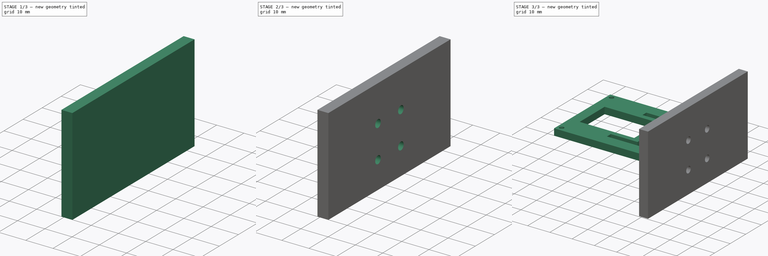
[diagram: build sequence overview — one tinted view per stage of 3, left to right]
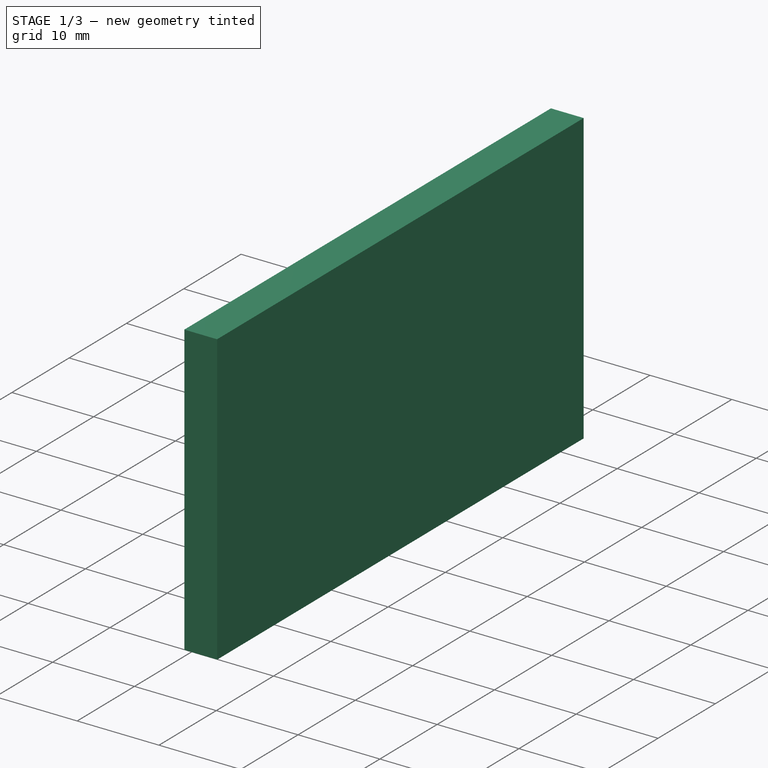
[diagram: stage 1 of 3 — iso view after this stage's code; geometry added in this stage tinted green]
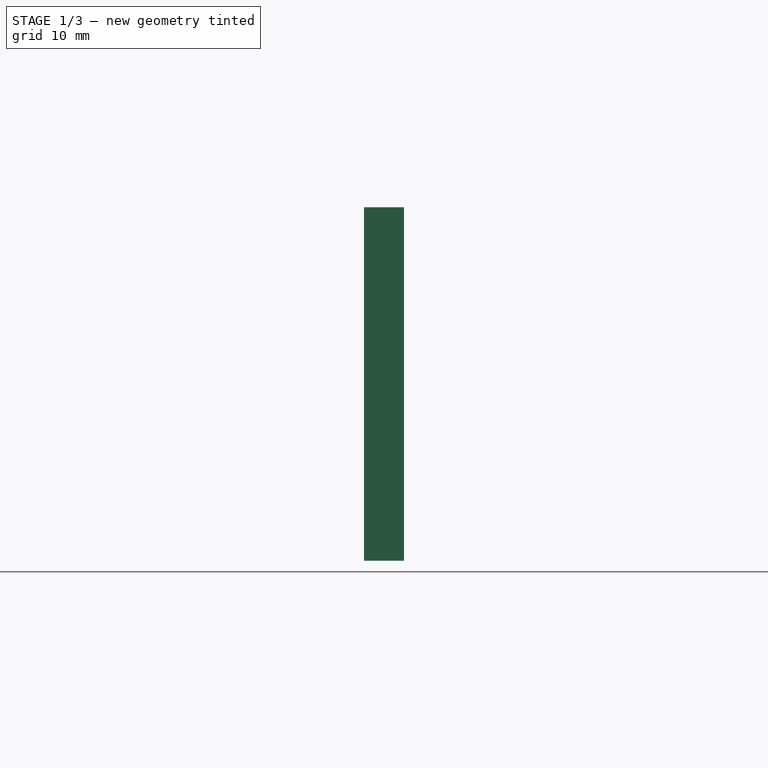
[diagram: stage 1 of 3 — front view after this stage's code; geometry added in this stage tinted green]
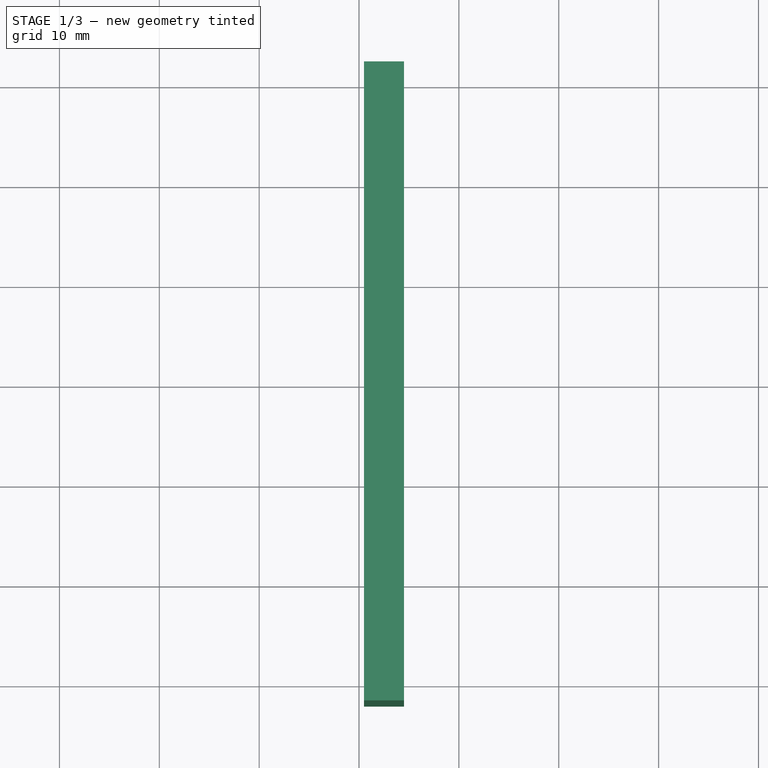
[diagram: stage 1 of 3 — top view after this stage's code; geometry added in this stage tinted green]
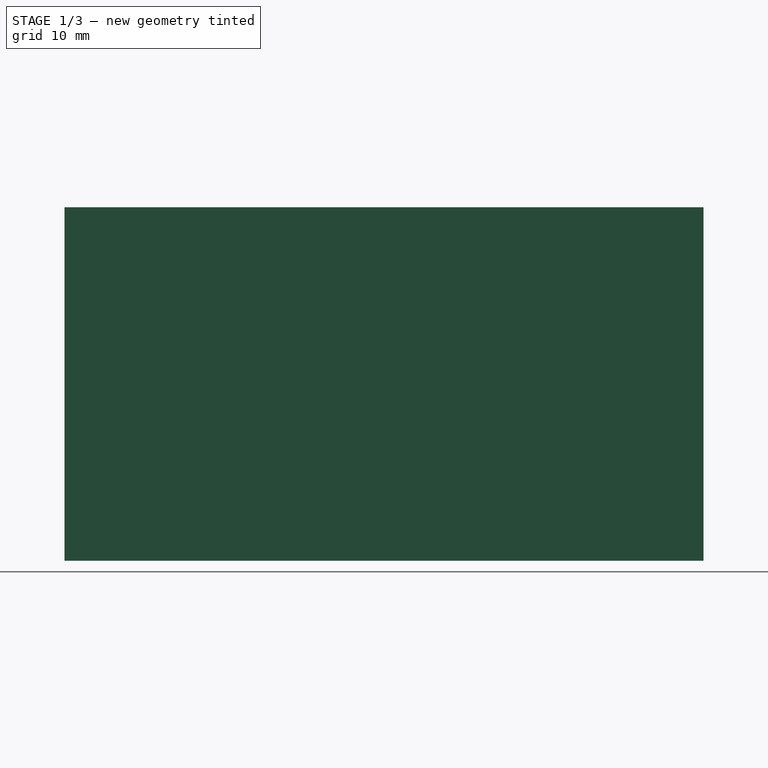
[diagram: stage 1 of 3 — right view after this stage's code; geometry added in this stage tinted green]
FCSTD DOCUMENT  (FreeCAD 0.20R29177 +426 (Git))
Label: camAndDisplayHolder2
License: All rights reserved
LicenseURL: http://en.wikipedia.org/wiki/All_rights_reserved
objects: Sketcher::SketchObject×5, PartDesign::Pocket×3, PartDesign::Pad×2, Spreadsheet::Sheet×1, PartDesign::Body×1
note: 16 computed .brp shape members not serialized (recipe doc carries the construction recipe); baked Part::Feature solids carry a one-line shape summary decoded from their .brp

FEATURE [Spreadsheet::Sheet] Spreadsheet
  cells = A2=holeDiameter; B2(holeDiameter)=1.8; A3=holeDistanceFromRim; B3(holeDistanceFromRim)=2; A4=displayOverheadWidth; B4(displayOverheadWidth)=12; A5=displayWidth; B5(displayWidth)=60; A6=displayHeight; B6(displayHeight)=35; A7=displayStandOff; B7(displayStandOff)=20; C7=from espCarrierBoard; A8=displayStandOffSide; B8(displayStandOffSide)=4; A9=standOffSide; B9(standOffSide)=5; C9=add 2x 1,5mm to screw diameter; A10=espStandoff; B10(espStandoff)=4; A11=espCarrierWidth; B11(espCarrierWidth)=40; A12=espCarrierHeight; B12(espCarrierHeight)=60; A13=faceWidth; B13(faceWidth)==B11 + 2 * B4; C13=c; A14=faceHeight; B14(faceHeight)==B12 - 2 * B3 + B9; C14=c
FEATURE [Sketcher::SketchObject] Sketch005
  FullyConstrained = true
  MapMode = 2
  Placement = pos=(20.5,0,0) rot=(0.57735,0.57735,0.57735;2.0944rad)
  expr: Constraints[7] = Spreadsheet.faceWidth
  sketch-geometry (4):
    g0: LineSegment StartX=-32 StartY=0 StartZ=0 EndX=32 EndY=0 EndZ=0
    g1: LineSegment StartX=32 StartY=0 StartZ=0 EndX=32 EndY=35.4 EndZ=0
    g2: LineSegment StartX=32 StartY=35.4 StartZ=0 EndX=-32 EndY=35.4 EndZ=0
    g3: LineSegment StartX=-32 StartY=35.4 StartZ=0 EndX=-32 EndY=0 EndZ=0
  constraints (11):
    c: Coincident(g0,g1)
    c: Coincident(g1,g2)
    c: Coincident(g2,g3)
    c: Coincident(g3,g0)
    c: Vertical(g1)
    c: Vertical(g3)
    c: DistanceY(g0,g1) = 35.4
    c: DistanceX(g2,g2) = 64
    c: Symmetric(g2,g1,g-2)
    c: Horizontal(g0)
    c: PointOnObject(g0,g-1)
FEATURE [PartDesign::Pad] Pad
  Direction = (1,0,0)
  Length = 4
  Length2 = 10
  Placement = pos=(20.5,0,0) rot=(0.57735,0.57735,0.57735;2.0944rad)
  Profile = -> Sketch005
  ReferenceAxis = -> Sketch005 [N_Axis]
  Type = 0
FEATURE [Sketcher::SketchObject] Sketch  label="screwHeadSketch"
  FullyConstrained = true
  MapMode = 5
  Placement = pos=(20.5,0,0) rot=(0.57735,0.57735,-0.57735;4.18879rad)
  Support = -> [Pad]
  sketch-geometry (4):
    g0: Circle CenterX=6 CenterY=-22 CenterZ=0 NormalX=0 NormalY=0 NormalZ=1 AngleXU=0 Radius=3
    g1: Circle CenterX=-6 CenterY=-22 CenterZ=0 NormalX=0 NormalY=0 NormalZ=1 AngleXU=0 Radius=3
    g2: Circle CenterX=6 CenterY=-10 CenterZ=0 NormalX=0 NormalY=0 NormalZ=1 AngleXU=0 Radius=3
    g3: Circle CenterX=-6 CenterY=-10 CenterZ=0 NormalX=0 NormalY=0 NormalZ=1 AngleXU=0 Radius=3
  constraints (11):
    c: Horizontal(g0,g1)
    c: Vertical(g0,g2)
    c: Vertical(g1,g3)
    c: DistanceY(g0,g2) = 12
    c: DistanceX(g1,g0) = 12
    c: Diameter(g0) = 6
    c: Equal(g1,g0)
    c: Equal(g0,g2)
    c: Equal(g0,g3)
    c: DistanceY(g3,g-1) = 10
    c: Symmetric(g3,g2,g-2)
FEATURE [PartDesign::Pocket] Pocket  label="screwHeadPocket"
  BaseFeature = -> Pad
  Direction = (1,-1e-16,1e-16)
  Length = 2
  Length2 = 5
  Placement = pos=(20.5,0,0) rot=(0.57735,0.57735,0.57735;2.0944rad)
  Profile = -> Sketch
  ReferenceAxis = -> Sketch [N_Axis]
  Type = 0
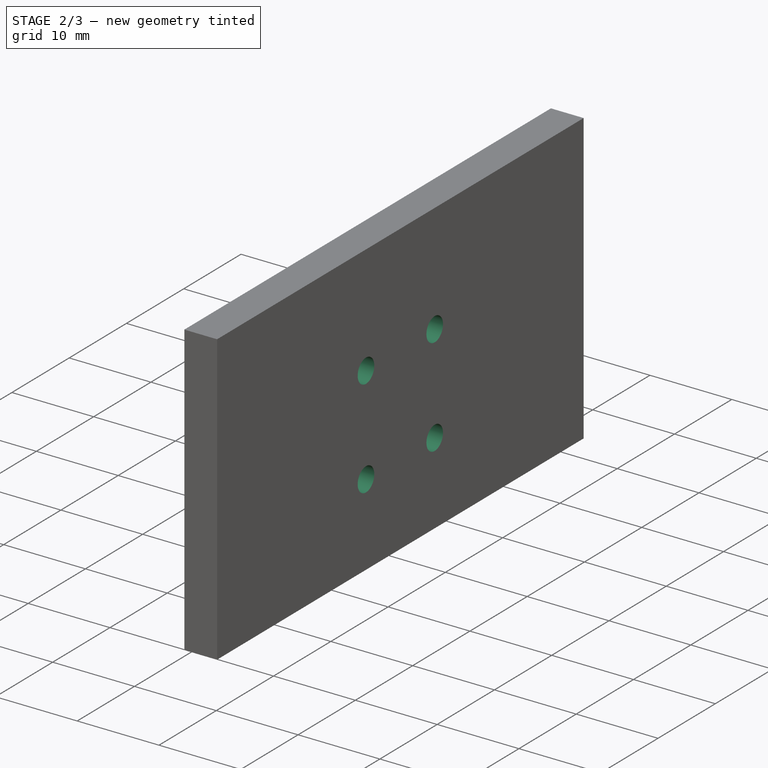
[diagram: stage 2 of 3 — iso view after this stage's code; geometry added in this stage tinted green]
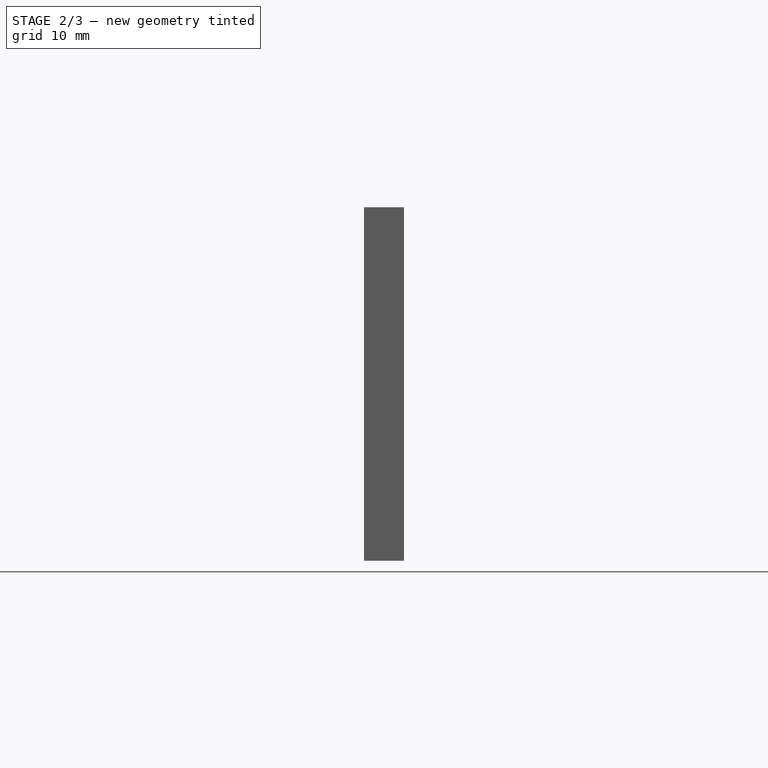
[diagram: stage 2 of 3 — front view after this stage's code; geometry added in this stage tinted green]
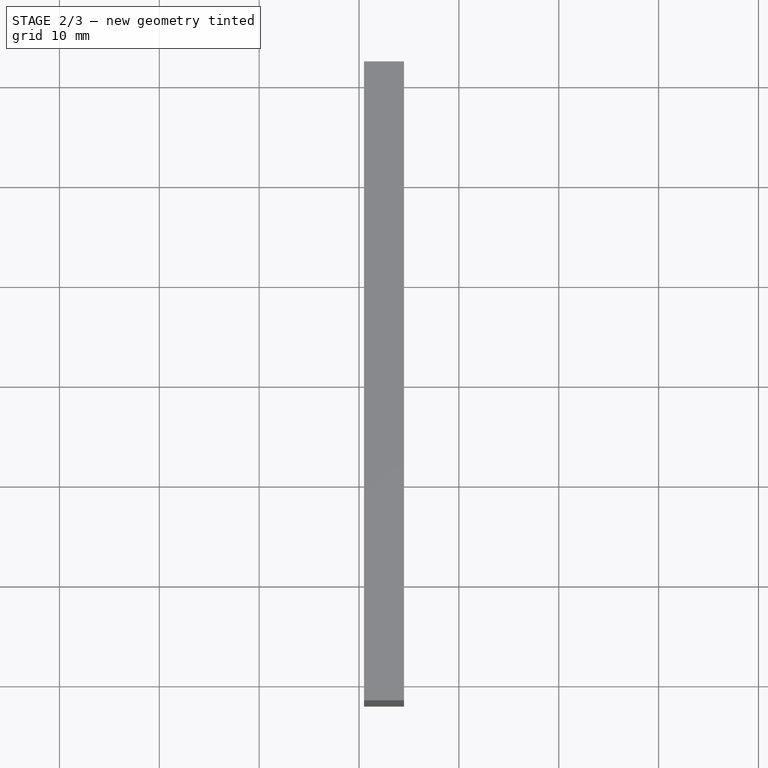
[diagram: stage 2 of 3 — top view after this stage's code; geometry added in this stage tinted green]
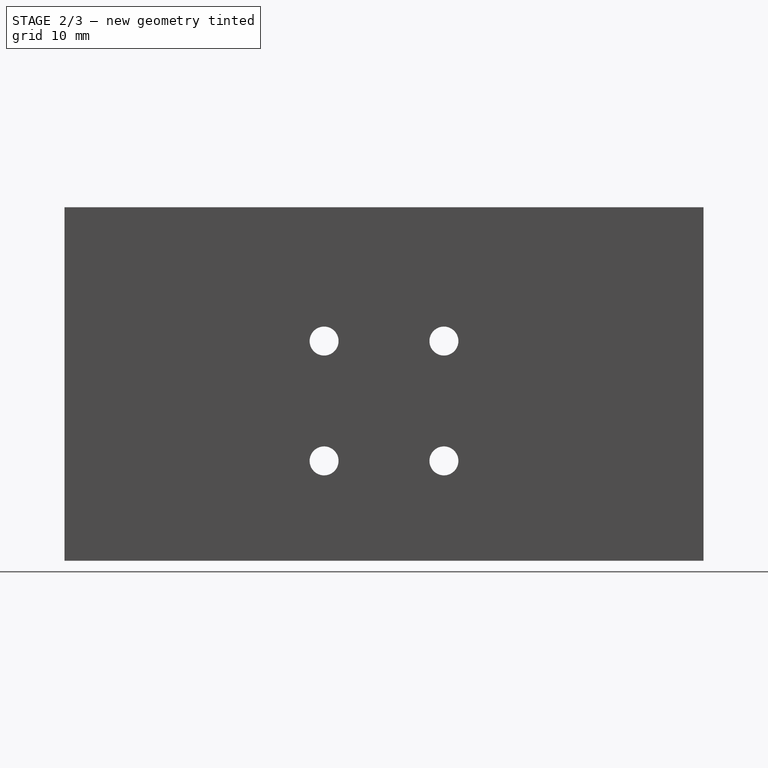
[diagram: stage 2 of 3 — right view after this stage's code; geometry added in this stage tinted green]
FEATURE [Sketcher::SketchObject] Sketch006
  FullyConstrained = true
  MapMode = 5
  Placement = pos=(20.5,0,0) rot=(0.57735,0.57735,-0.57735;4.18879rad)
  Support = -> [Pocket]
  sketch-geometry (4):
    g0: Circle CenterX=6 CenterY=-22 CenterZ=0 NormalX=0 NormalY=0 NormalZ=1 AngleXU=0 Radius=1.45
    g1: Circle CenterX=-6 CenterY=-22 CenterZ=0 NormalX=0 NormalY=0 NormalZ=1 AngleXU=0 Radius=1.45
    g2: Circle CenterX=6 CenterY=-10 CenterZ=0 NormalX=0 NormalY=0 NormalZ=1 AngleXU=0 Radius=1.45
    g3: Circle CenterX=-6 CenterY=-10 CenterZ=0 NormalX=0 NormalY=0 NormalZ=1 AngleXU=0 Radius=1.45
  constraints (11):
    c: Vertical(g0,g2)
    c: Vertical(g1,g3)
    c: Horizontal(g0,g1)
    c: Diameter(g1) = 2.9
    c: Equal(g1,g0)
    c: Equal(g1,g3)
    c: Equal(g1,g2)
    c: DistanceX(g1,g0) = 12
    c: DistanceY(g0,g2) = 12
    c: DistanceY(g2,g-1) = 10
    c: Symmetric(g2,g3,g-2)
FEATURE [PartDesign::Pocket] Pocket001
  BaseFeature = -> Pocket
  Direction = (1,-1e-16,1e-16)
  Length = 5
  Length2 = 5
  Placement = pos=(20.5,0,0) rot=(0.57735,0.57735,0.57735;2.0944rad)
  Profile = -> Sketch006
  ReferenceAxis = -> Sketch006 [N_Axis]
  Type = 0
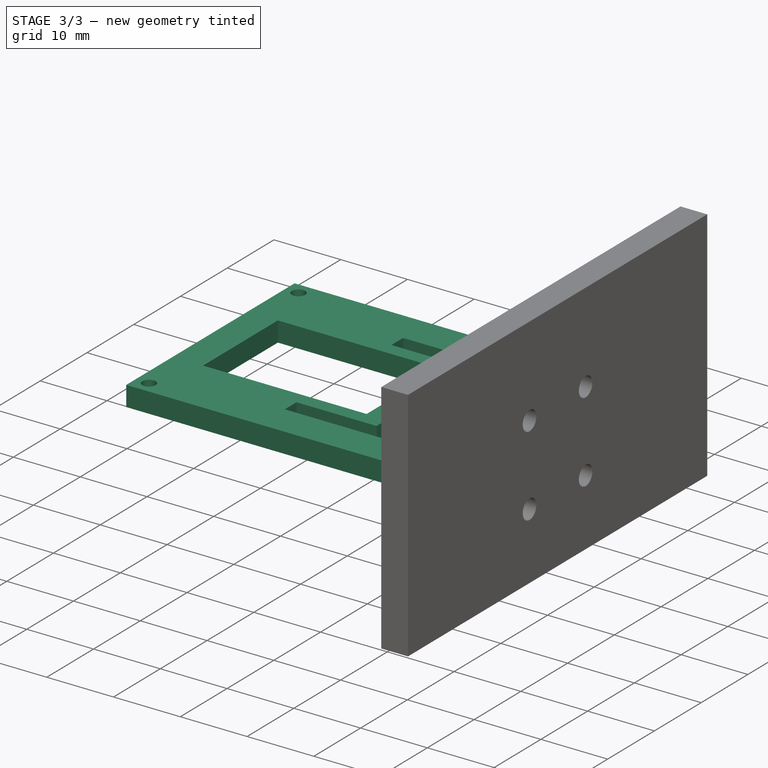
[diagram: stage 3 of 3 — iso view after this stage's code; geometry added in this stage tinted green]
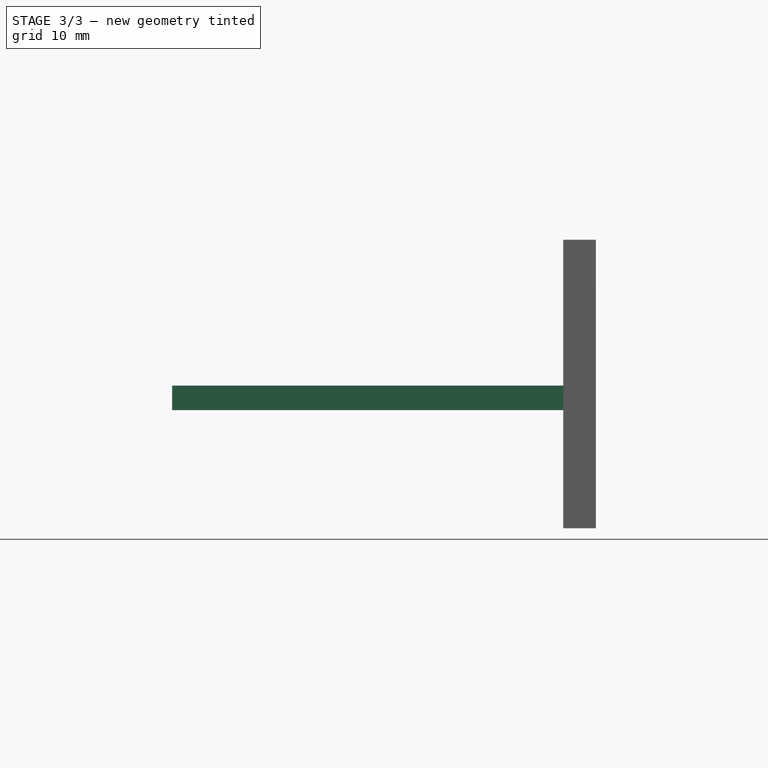
[diagram: stage 3 of 3 — front view after this stage's code; geometry added in this stage tinted green]
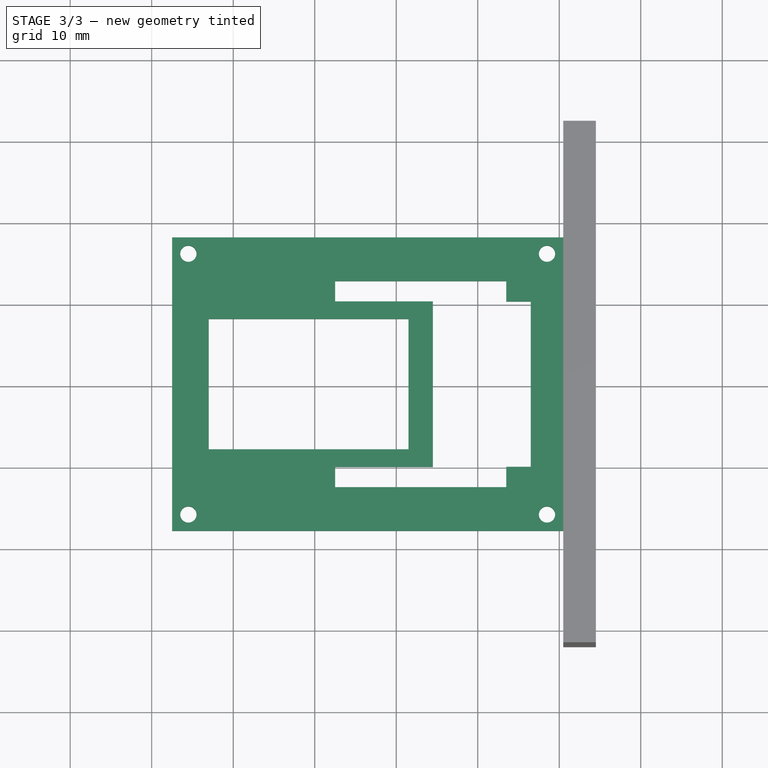
[diagram: stage 3 of 3 — top view after this stage's code; geometry added in this stage tinted green]
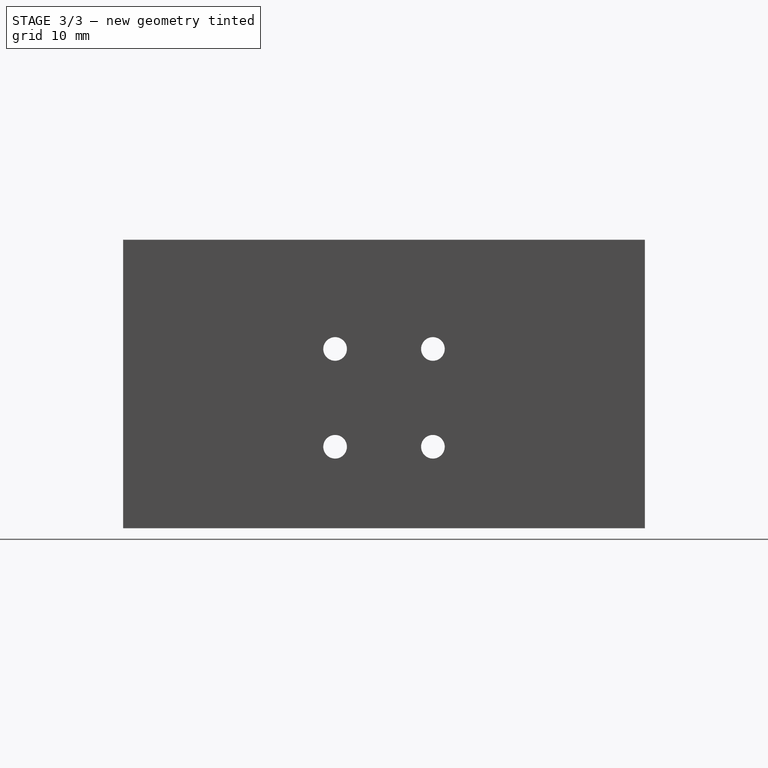
[diagram: stage 3 of 3 — right view after this stage's code; geometry added in this stage tinted green]
FEATURE [Sketcher::SketchObject] Sketch007
  ExternalGeometry = -> [Pocket001]
  FullyConstrained = true
  MapMode = 5
  Placement = pos=(20.5,0,0) rot=(0.57735,0.57735,-0.57735;4.18879rad)
  Support = -> [Pocket001]
  sketch-geometry (5):
    g0: LineSegment StartX=-18 StartY=-14.5 StartZ=0 EndX=18 EndY=-14.5 EndZ=0
    g1: LineSegment StartX=18 StartY=-14.5 StartZ=0 EndX=18 EndY=-17.5 EndZ=0
    g2: LineSegment StartX=18 StartY=-17.5 StartZ=0 EndX=-18 EndY=-17.5 EndZ=0
    g3: LineSegment StartX=-18 StartY=-17.5 StartZ=0 EndX=-18 EndY=-14.5 EndZ=0
    g4: GeomPoint X=5.8e-15 Y=-16 Z=0
  constraints (11):
    c: Coincident(g0,g1)
    c: Coincident(g1,g2)
    c: Coincident(g2,g3)
    c: Coincident(g3,g0)
    c: Horizontal(g2)
    c: Vertical(g1)
    c: DistanceY(g3,g3) = 3
    c: Symmetric(g0,g0,g-2)
    c: DistanceX(g0,g0) = 36
    c: Symmetric(g2,g0,g4)
    c: Symmetric(g-3,g-4,g4)
FEATURE [PartDesign::Pad] Pad001
  BaseFeature = -> Pocket001
  Direction = (-1,0,-4e-16)
  Length = 48
  Length2 = 10
  Placement = pos=(20.5,0,0) rot=(0.57735,0.57735,0.57735;2.0944rad)
  Profile = -> Sketch007
  ReferenceAxis = -> Sketch007 [N_Axis]
  Type = 0
FEATURE [Sketcher::SketchObject] Sketch008
  ExternalGeometry = -> [Pad001]
  FullyConstrained = true
  MapMode = 5
  Placement = pos=(20.5,0,14.5) rot=(0.707107,0.707107,0;3.14159rad)
  Support = -> [Pad001]
  sketch-geometry (20):
    g0: LineSegment StartX=12.65 StartY=-28 StartZ=0 EndX=10.15 EndY=-28 EndZ=0
    g1: LineSegment StartX=10.15 StartY=-28 StartZ=0 EndX=10.15 EndY=-16 EndZ=0
    g2: LineSegment StartX=10.15 StartY=-16 StartZ=0 EndX=-10.15 EndY=-16 EndZ=0
    g3: LineSegment StartX=-10.15 StartY=-16 StartZ=0 EndX=-10.15 EndY=-28 EndZ=0
    g4: LineSegment StartX=-10.15 StartY=-28 StartZ=0 EndX=-12.65 EndY=-28 EndZ=0
    g5: LineSegment StartX=-12.65 StartY=-28 StartZ=0 EndX=-12.65 EndY=-7 EndZ=0
    g6: LineSegment StartX=-12.65 StartY=-7 StartZ=0 EndX=-10.15 EndY=-7 EndZ=0
    g7: LineSegment StartX=-10.15 StartY=-7 StartZ=0 EndX=-10.15 EndY=-4 EndZ=0
    g8: LineSegment StartX=-10.15 StartY=-4 StartZ=0 EndX=10.15 EndY=-4 EndZ=0
    g9: LineSegment StartX=10.15 StartY=-4 StartZ=0 EndX=10.15 EndY=-7 EndZ=0
    g10: LineSegment StartX=10.15 StartY=-7 StartZ=0 EndX=12.65 EndY=-7 EndZ=0
    g11: LineSegment StartX=12.65 StartY=-7 StartZ=0 EndX=12.65 EndY=-28 EndZ=0
    g12: LineSegment StartX=8 StartY=-43.5 StartZ=0 EndX=-8 EndY=-43.5 EndZ=0
    g13: LineSegment StartX=-8 StartY=-43.5 StartZ=0 EndX=-8 EndY=-19 EndZ=0
    g14: LineSegment StartX=-8 StartY=-19 StartZ=0 EndX=8 EndY=-19 EndZ=0
    g15: LineSegment StartX=8 StartY=-19 StartZ=0 EndX=8 EndY=-43.5 EndZ=0
    g16: Circle CenterX=16 CenterY=-46 CenterZ=0 NormalX=0 NormalY=0 NormalZ=1 AngleXU=0 Radius=1
    g17: Circle CenterX=-16 CenterY=-46 CenterZ=0 NormalX=0 NormalY=0 NormalZ=1 AngleXU=0 Radius=1
    g18: Circle CenterX=16 CenterY=-2 CenterZ=0 NormalX=0 NormalY=0 NormalZ=1 AngleXU=0 Radius=1
    g19: Circle CenterX=-16 CenterY=-2 CenterZ=0 NormalX=0 NormalY=0 NormalZ=1 AngleXU=0 Radius=1
  constraints (58):
    c: Horizontal(g0)
    c: Coincident(g0,g1)
    c: Vertical(g1)
    c: Coincident(g1,g2)
    c: Coincident(g2,g3)
    c: Vertical(g3)
    c: Coincident(g3,g4)
    c: Horizontal(g4)
    c: Coincident(g4,g5)
    c: Vertical(g5)
    c: Coincident(g5,g6)
    c: Horizontal(g6)
    c: Coincident(g6,g7)
    c: Vertical(g7)
    c: Coincident(g7,g8)
    c: Horizontal(g8)
    c: Coincident(g8,g9)
    c: Coincident(g9,g10)
    c: Horizontal(g10)
    c: Coincident(g10,g11)
    c: Coincident(g11,g0)
    c: Vertical(g11)
    c: Vertical(g9)
    c: DistanceX(g0,g0) = 2.5
    c: Equal(g0,g10)
    c: Equal(g0,g4)
    c: Equal(g0,g6)
    c: DistanceY(g0,g9) = 21
    c: Equal(g11,g5)
    c: Horizontal(g0,g3)
    c: DistanceY(g9,g9) = 3
    c: DistanceY(g8,g-1) = 4
    c: DistanceY(g1,g8) = 12
    c: DistanceX(g2,g1) = 20.3
    c: Symmetric(g1,g2,g-2)
    c: Coincident(g12,g13)
    c: Coincident(g13,g14)
    c: Coincident(g14,g15)
    c: Coincident(g15,g12)
    c: Horizontal(g14)
    c: Vertical(g13)
    c: Vertical(g15)
    c: DistanceX(g12,g12) = 16
    c: DistanceY(g13,g13) = 24.5
    c: DistanceY(g13,g7) = 15
    c: Symmetric(g12,g12,g-2)
    c: Diameter(g17) = 2
    c: Equal(g16,g17)
    c: Equal(g17,g19)
    c: Equal(g17,g18)
    c: DistanceX(g-4,g17) = 2
    c: Vertical(g17,g19)
    c: Horizontal(g16,g17)
    c: Vertical(g16,g18)
    c: Horizontal(g18,g19)
    c: DistanceY(g18,g-1) = 2
    c: DistanceX(g16,g-3) = 2
    c: DistanceY(g-3,g16) = 2
FEATURE [PartDesign::Pocket] Pocket002
  BaseFeature = -> Pad001
  Direction = (-6e-16,0,1)
  Length = 5
  Length2 = 5
  Placement = pos=(20.5,0,0) rot=(0.57735,0.57735,0.57735;2.0944rad)
  Profile = -> Sketch008
  ReferenceAxis = -> Sketch008 [N_Axis]
  Type = 0
FEATURE [PartDesign::Body] Body
  Group = -> [Sketch005,Pad,Sketch,Pocket,Sketch006,Pocket001,Sketch007,Pad001,Sketch008,Pocket002]
  Origin = -> Origin
  Tip = -> Pocket002
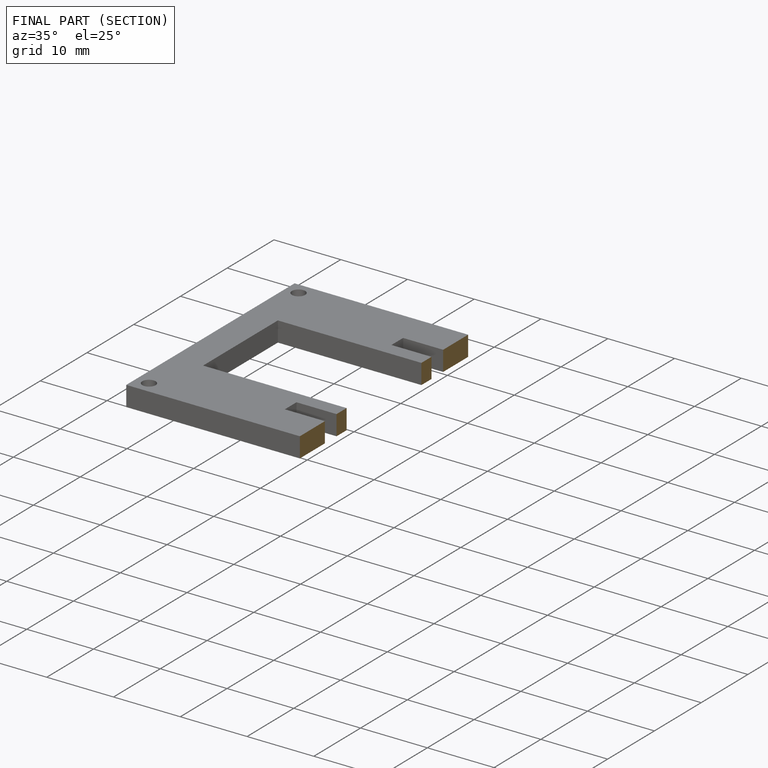
[diagram: finished part — half-section view (interior)]
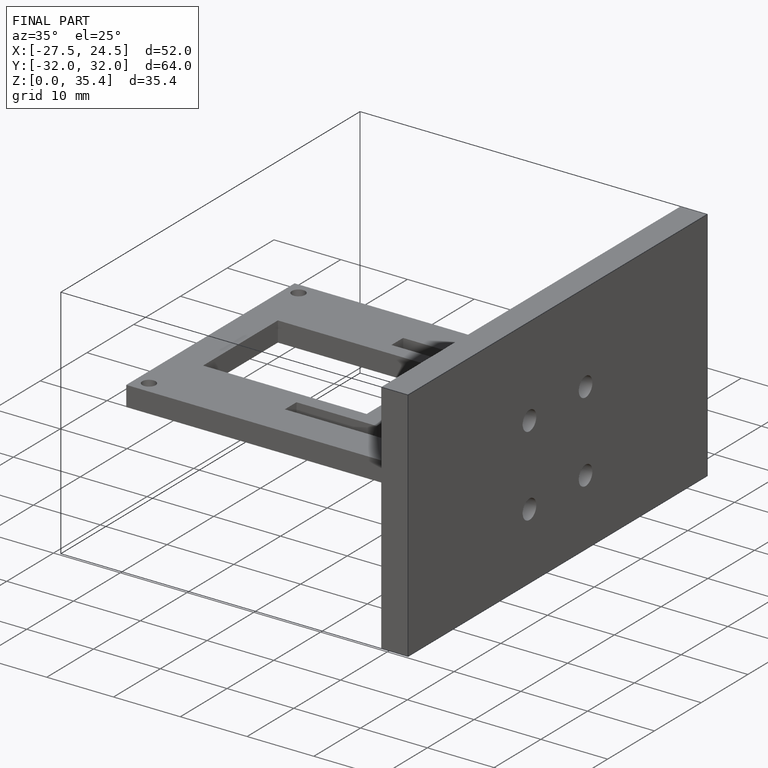
[diagram: finished part — iso view with bounding-box wireframe]
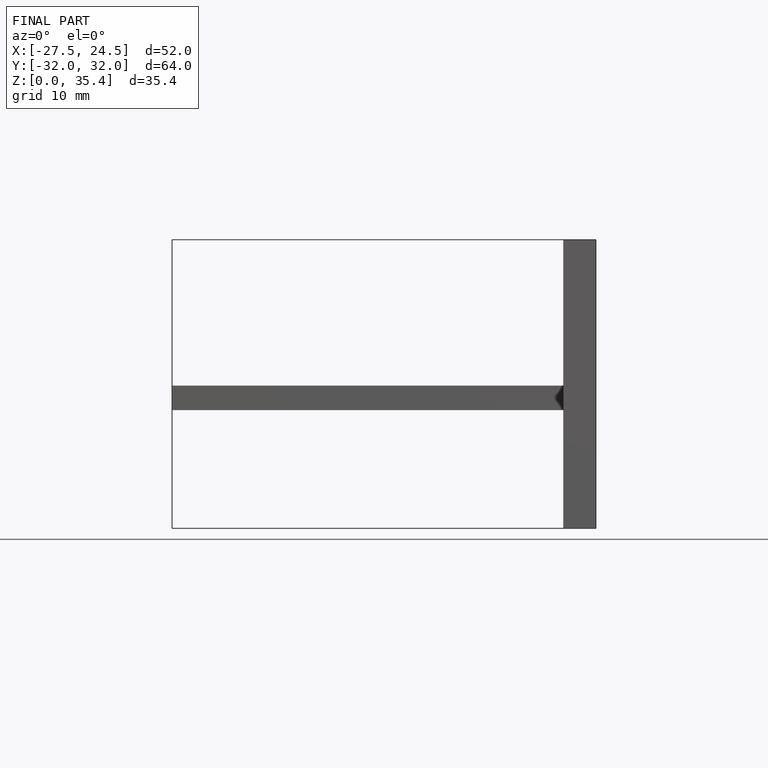
[diagram: finished part — front view with bounding-box wireframe]
